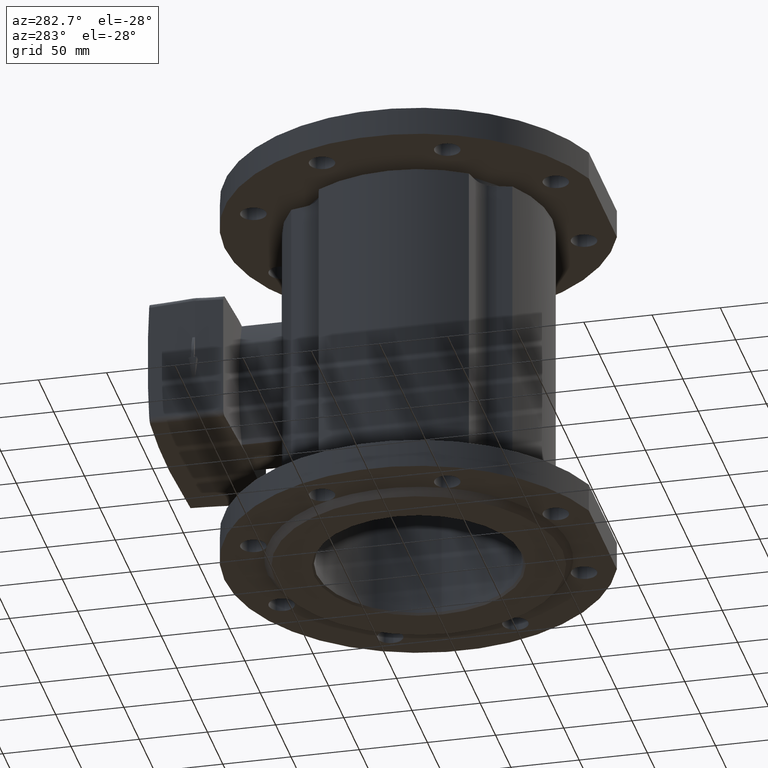
[diagram: clean part render]
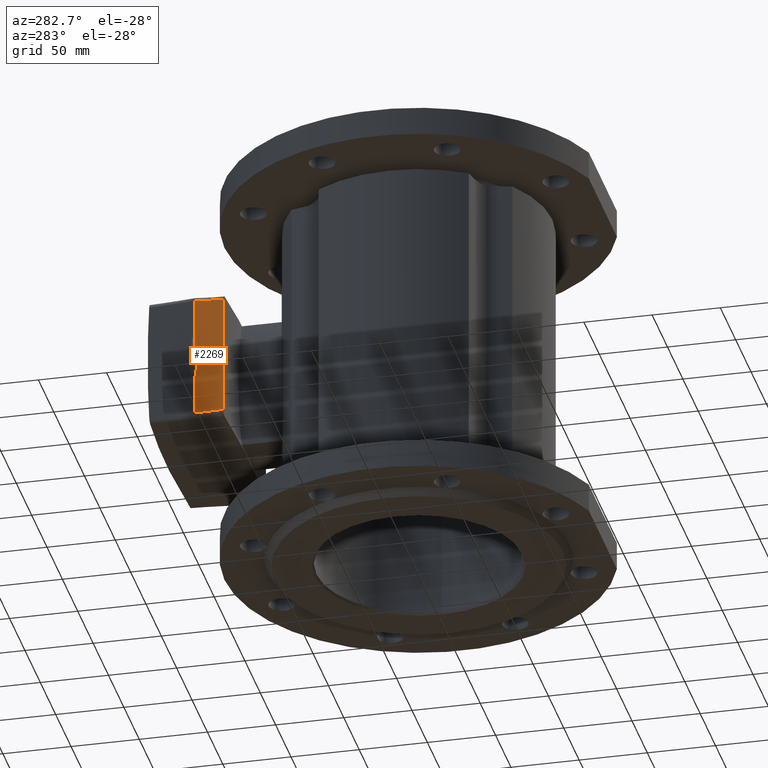
[diagram: same view with one face highlighted and labeled with its STEP entity id]
A machine part, auxiliary view. The second image highlights one B-rep face of the part: STEP entity #2269.
In plain terms, the highlighted planar face has unit normal (0.9994, 0.0349, 0).
Its self-contained STEP definition (entity closure, byte-faithful):
#25 = CARTESIAN_POINT ( 'NONE',  ( -69.84729804445271384, 80.12718812414604486, 45.14590684234093487 ) ) ;
#79 = EDGE_CURVE ( 'NONE', #5221, #4206, #4552, .T. ) ;
#235 = CARTESIAN_POINT ( 'NONE',  ( -69.37011503708028215, 66.46245466272873159, -44.66997530625783241 ) ) ;
#425 =( BOUNDED_CURVE ( )  B_SPLINE_CURVE ( 3, ( #1952, #867, #4507, #2420 ),
 .UNSPECIFIED., .F., .T. ) 
 B_SPLINE_CURVE_WITH_KNOTS ( ( 4, 4 ),
 ( 3.138273533328135301, 3.141592653589792228 ),
 .UNSPECIFIED. ) 
 CURVE ( )  GEOMETRIC_REPRESENTATION_ITEM ( )  RATIONAL_B_SPLINE_CURVE ( ( 1.000000000000000000, 0.9999990819536013209, 0.9999990819536013209, 1.000000000000000000 ) ) 
 REPRESENTATION_ITEM ( '' )  );
#529 = ORIENTED_EDGE ( 'NONE', *, *, #4794, .F. ) ;
#592 = ORIENTED_EDGE ( 'NONE', *, *, #2617, .T. ) ;
#706 = ORIENTED_EDGE ( 'NONE', *, *, #2880, .T. ) ;
#867 = CARTESIAN_POINT ( 'NONE',  ( -69.96499265562714243, 83.49752081977609919, 45.25885098533301942 ) ) ;
#945 = ORIENTED_EDGE ( 'NONE', *, *, #974, .T. ) ;
#974 = EDGE_CURVE ( 'NONE', #2574, #4921, #2589, .T. ) ;
#1022 = VECTOR ( 'NONE', #3718, 1000.000000000000000 ) ;
#1207 = CARTESIAN_POINT ( 'NONE',  ( -69.24920345592711612, 62.99999999999994316, -44.54937908316347261 ) ) ;
#1232 = ORIENTED_EDGE ( 'NONE', *, *, #6344, .F. ) ;
#1365 = VERTEX_POINT ( 'NONE', #3557 ) ;
#1377 = EDGE_CURVE ( 'NONE', #5624, #1915, #1467, .T. ) ;
#1455 = CARTESIAN_POINT ( 'NONE',  ( -69.96499265562712822, 83.49752081977551654, -45.25885098534537576 ) ) ;
#1467 = LINE ( 'NONE', #4461, #2503 ) ;
#1722 = CARTESIAN_POINT ( 'NONE',  ( -69.96500000000001762, 83.49773113509802158, 60.00000000000000000 ) ) ;
#1784 = CARTESIAN_POINT ( 'NONE',  ( -69.49102661930025704, 69.92490935601875890, -44.79057065083831901 ) ) ;
#1844 = DIRECTION ( 'NONE',  ( 0.0000000000000000000, 0.0000000000000000000, 1.000000000000000000 ) ) ;
#1847 = CARTESIAN_POINT ( 'NONE',  ( -69.24920345592711612, 62.99999999999994316, 60.00000000000000000 ) ) ;
#1915 = VERTEX_POINT ( 'NONE', #2106 ) ;
#1952 = CARTESIAN_POINT ( 'NONE',  ( -69.96497796690177040, 83.49710018971167358, 45.26327645666978583 ) ) ;
#2076 = CARTESIAN_POINT ( 'NONE',  ( -69.96497796690177040, 83.49710018971167358, 45.26327645666978583 ) ) ;
#2097 = CARTESIAN_POINT ( 'NONE',  ( -69.24920345592751403, 63.00000000000000000, 60.00000000000000000 ) ) ;
#2106 = CARTESIAN_POINT ( 'NONE',  ( -69.89523769152479815, 81.50000000000000000, -2.069841538983489215 ) ) ;
#2181 = CARTESIAN_POINT ( 'NONE',  ( -69.72961812301451801, 76.75727608753267361, -45.02853639572087729 ) ) ;
#2259 = CARTESIAN_POINT ( 'NONE',  ( -69.96497796690177040, 83.49710018971167358, 45.26327645666978583 ) ) ;
#2269 = ADVANCED_FACE ( 'NONE', ( #4127 ), #3092, .F. ) ;
#2406 = AXIS2_PLACEMENT_3D ( 'NONE', #2097, #5148, #3621 ) ;
#2420 = CARTESIAN_POINT ( 'NONE',  ( -69.96500000000001762, 83.49773113509802158, 45.25000000000000000 ) ) ;
#2439 = DIRECTION ( 'NONE',  ( 0.004962742942775837454, -0.1421143638873464121, 0.9898378042686482026 ) ) ;
#2503 = VECTOR ( 'NONE', #2439, 1000.000000000000114 ) ;
#2574 = VERTEX_POINT ( 'NONE', #3755 ) ;
#2589 = B_SPLINE_CURVE_WITH_KNOTS ( 'NONE', 3,
 ( #3035, #5060, #6523, #4597, #4496, #25, #2076 ),
 .UNSPECIFIED., .F., .F.,
 ( 4, 3, 4 ),
 ( 0.0000000000000000000, 0.01039999029607278913, 0.02052201497898286861 ),
 .UNSPECIFIED. ) ;
#2617 = EDGE_CURVE ( 'NONE', #4921, #4250, #425, .T. ) ;
#2685 = CARTESIAN_POINT ( 'NONE',  ( -69.96500000000001762, 83.49773113509802158, -45.25000000000001421 ) ) ;
#2880 = EDGE_CURVE ( 'NONE', #4206, #1365, #2958, .T. ) ;
#2958 = B_SPLINE_CURVE_WITH_KNOTS ( 'NONE', 3,
 ( #6367, #4211, #2181, #6297, #1784, #235, #1207 ),
 .UNSPECIFIED., .F., .F.,
 ( 4, 3, 4 ),
 ( 6.317123085737354288E-07, 0.01012265639521692240, 0.02052264669128962132 ),
 .UNSPECIFIED. ) ;
#3008 = ORIENTED_EDGE ( 'NONE', *, *, #1377, .F. ) ;
#3035 = CARTESIAN_POINT ( 'NONE',  ( -69.24920345592711612, 62.99999999999994316, 44.54937908314170159 ) ) ;
#3040 = EDGE_CURVE ( 'NONE', #5221, #5624, #4968, .T. ) ;
#3092 = PLANE ( 'NONE',  #2406 ) ;
#3173 = CARTESIAN_POINT ( 'NONE',  ( -69.96497796690125881, 83.49710018970993985, -45.26327645668831678 ) ) ;
#3355 = VECTOR ( 'NONE', #1844, 1000.000000000000000 ) ;
#3557 = CARTESIAN_POINT ( 'NONE',  ( -69.24920345592711612, 62.99999999999994316, -44.54937908316347261 ) ) ;
#3589 = VECTOR ( 'NONE', #5047, 1000.000000000000114 ) ;
#3596 = VECTOR ( 'NONE', #3878, 1000.000000000000000 ) ;
#3621 = DIRECTION ( 'NONE',  ( -0.03489949670249713892, 0.9993908270190957621, 0.0000000000000000000 ) ) ;
#3718 = DIRECTION ( 'NONE',  ( 0.0000000000000000000, 0.0000000000000000000, 1.000000000000000000 ) ) ;
#3755 = CARTESIAN_POINT ( 'NONE',  ( -69.24920345592711612, 62.99999999999994316, 44.54937908314170159 ) ) ;
#3806 = CARTESIAN_POINT ( 'NONE',  ( -69.96500000000001762, 83.49773113509802158, 45.25000000000000000 ) ) ;
#3836 = ORIENTED_EDGE ( 'NONE', *, *, #79, .T. ) ;
#3878 = DIRECTION ( 'NONE',  ( -0.0000000000000000000, -0.0000000000000000000, -1.000000000000000000 ) ) ;
#4127 = FACE_OUTER_BOUND ( 'NONE', #4735, .T. ) ;
#4206 = VERTEX_POINT ( 'NONE', #3173 ) ;
#4211 = CARTESIAN_POINT ( 'NONE',  ( -69.84729804445221646, 80.12718812414486536, -45.14590684236000584 ) ) ;
#4250 = VERTEX_POINT ( 'NONE', #3806 ) ;
#4416 = CARTESIAN_POINT ( 'NONE',  ( -69.96500000000001762, 83.49773113509792211, -45.25442549571980777 ) ) ;
#4461 = CARTESIAN_POINT ( 'NONE',  ( -69.57726781577760278, 72.39453410176548687, 61.35044987291090735 ) ) ;
#4496 = CARTESIAN_POINT ( 'NONE',  ( -69.72961812301454643, 76.75727608753329889, 45.02853639570128053 ) ) ;
#4507 = CARTESIAN_POINT ( 'NONE',  ( -69.96500000000001762, 83.49773113509793632, 45.25442549571362605 ) ) ;
#4552 =( BOUNDED_CURVE ( )  B_SPLINE_CURVE ( 3, ( #5877, #4416, #1455, #6407 ),
 .UNSPECIFIED., .F., .F. ) 
 B_SPLINE_CURVE_WITH_KNOTS ( ( 4, 4 ),
 ( -8.881784197001252323E-16, 0.003319120266288534682 ),
 .UNSPECIFIED. ) 
 CURVE ( )  GEOMETRIC_REPRESENTATION_ITEM ( )  RATIONAL_B_SPLINE_CURVE ( ( 1.000000000000000000, 0.9999990819535988784, 0.9999990819535988784, 1.000000000000000000 ) ) 
 REPRESENTATION_ITEM ( '' )  );
#4597 = CARTESIAN_POINT ( 'NONE',  ( -69.61193820258753817, 73.38736407987180144, 44.91116511681535428 ) ) ;
#4656 = CARTESIAN_POINT ( 'NONE',  ( -69.96500000000001762, 83.49773113509802158, -2.000079230508243100 ) ) ;
#4698 = ORIENTED_EDGE ( 'NONE', *, *, #5231, .F. ) ;
#4701 = ORIENTED_EDGE ( 'NONE', *, *, #3040, .F. ) ;
#4735 = EDGE_LOOP ( 'NONE', ( #529, #3008, #4701, #3836, #706, #1232, #945, #592, #4698 ) ) ;
#4794 = EDGE_CURVE ( 'NONE', #1915, #5904, #6583, .T. ) ;
#4853 = CARTESIAN_POINT ( 'NONE',  ( -69.96500000000001762, 83.49773113509802158, -15.98419717619432845 ) ) ;
#4921 = VERTEX_POINT ( 'NONE', #2259 ) ;
#4968 = LINE ( 'NONE', #5464, #3355 ) ;
#5047 = DIRECTION ( 'NONE',  ( -0.03487826274237080387, 0.9987827659587185103, 0.03487826274237054713 ) ) ;
#5060 = CARTESIAN_POINT ( 'NONE',  ( -69.37011503708028215, 66.46245466272876001, 44.66997530623661561 ) ) ;
#5148 = DIRECTION ( 'NONE',  ( 0.9993908270190958731, 0.03489949670249714586, -0.0000000000000000000 ) ) ;
#5221 = VERTEX_POINT ( 'NONE', #2685 ) ;
#5231 = EDGE_CURVE ( 'NONE', #5904, #4250, #6237, .T. ) ;
#5464 = CARTESIAN_POINT ( 'NONE',  ( -69.96500000000001762, 83.49773113509802158, 60.00000000000000000 ) ) ;
#5517 = CARTESIAN_POINT ( 'NONE',  ( -69.32549689308727636, 65.18475819033137952, -2.639582337420981695 ) ) ;
#5624 = VERTEX_POINT ( 'NONE', #4853 ) ;
#5877 = CARTESIAN_POINT ( 'NONE',  ( -69.96500000000001762, 83.49773113509802158, -45.25000000000001421 ) ) ;
#5904 = VERTEX_POINT ( 'NONE', #4656 ) ;
#6237 = LINE ( 'NONE', #1722, #1022 ) ;
#6297 = CARTESIAN_POINT ( 'NONE',  ( -69.61193820258752396, 73.38736407987174459, -44.91116511683549817 ) ) ;
#6344 = EDGE_CURVE ( 'NONE', #2574, #1365, #6400, .T. ) ;
#6367 = CARTESIAN_POINT ( 'NONE',  ( -69.96497796690125881, 83.49710018970993985, -45.26327645668831678 ) ) ;
#6400 = LINE ( 'NONE', #1847, #3596 ) ;
#6407 = CARTESIAN_POINT ( 'NONE',  ( -69.96497796690125881, 83.49710018970993985, -45.26327645668831678 ) ) ;
#6523 = CARTESIAN_POINT ( 'NONE',  ( -69.49102661930027125, 69.92490935601880153, 44.79057065081762801 ) ) ;
#6583 = LINE ( 'NONE', #5517, #3589 ) ;